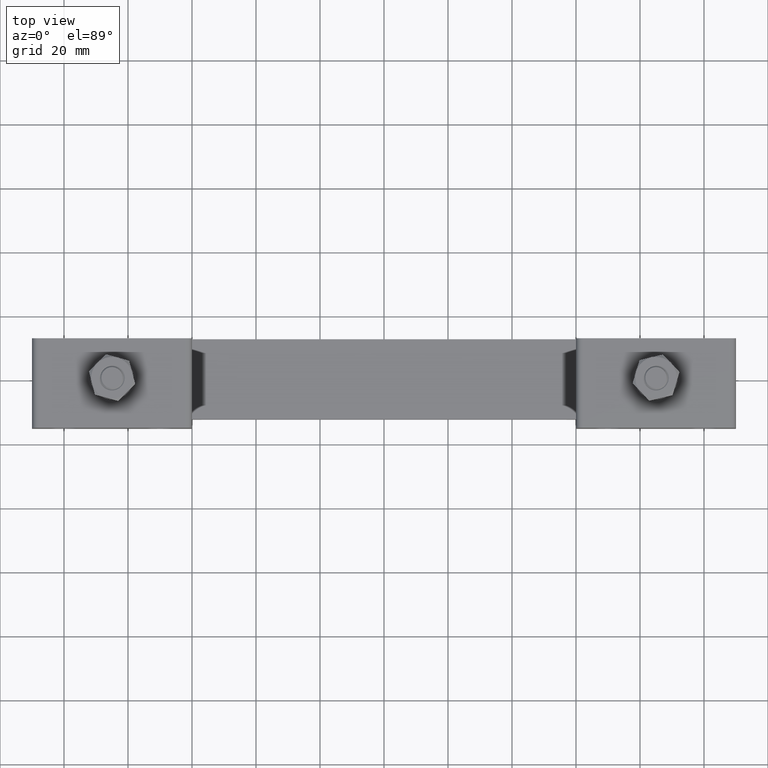
[diagram: clean part render]
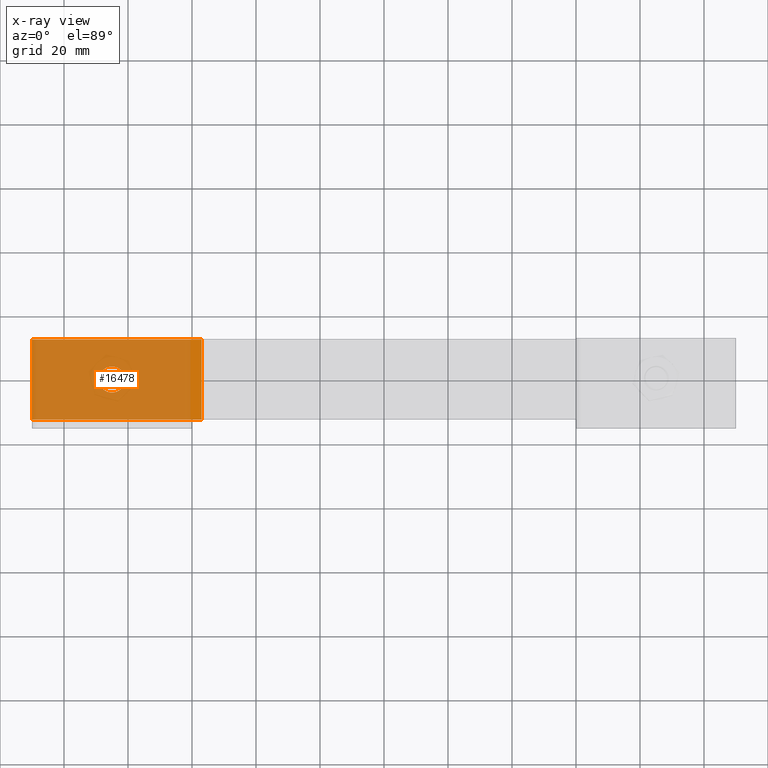
[diagram: x-ray — body ghosted, one internal face saturated and labeled with its STEP entity id]
A machine part, top view, then the same camera in x-ray: the body is ghosted and one INTERNAL B-rep face — a face not visible from any outside direction — is saturated and labeled: STEP entity #16478.
In plain terms, the highlighted planar face has unit normal (0, -0, 1).
Its self-contained STEP definition (entity closure, byte-faithful):
#322 = LINE ( 'NONE', #7096, #16093 ) ;
#450 = CARTESIAN_POINT ( 'NONE',  ( -110.0000000000000000, 12.50000000000020100, 4.000000000000000000 ) ) ;
#678 = EDGE_CURVE ( 'NONE', #1671, #6424, #3650, .T. ) ;
#823 = ORIENTED_EDGE ( 'NONE', *, *, #4439, .F. ) ;
#1263 = PLANE ( 'NONE',  #4542 ) ;
#1671 = VERTEX_POINT ( 'NONE', #10287 ) ;
#2054 = CARTESIAN_POINT ( 'NONE',  ( -85.00000000000000000, 3.447558851152469500E-015, 4.000000000000000000 ) ) ;
#2158 = LINE ( 'NONE', #8626, #14633 ) ;
#2222 = DIRECTION ( 'NONE',  ( 1.000000000000000000, 1.459206720071655800E-017, -6.938893903907250100E-016 ) ) ;
#2338 = EDGE_LOOP ( 'NONE', ( #17845, #16010, #823, #4496 ) ) ;
#2692 = ORIENTED_EDGE ( 'NONE', *, *, #9703, .T. ) ;
#2883 = DIRECTION ( 'NONE',  ( 6.938893903907250100E-016, -6.129044733418019900E-016, 1.000000000000000000 ) ) ;
#3083 = CARTESIAN_POINT ( 'NONE',  ( -110.0000000000000000, -12.50000000000024000, 4.000000000000000000 ) ) ;
#3441 = EDGE_CURVE ( 'NONE', #10076, #9677, #2158, .T. ) ;
#3650 = LINE ( 'NONE', #9076, #20148 ) ;
#4189 = AXIS2_PLACEMENT_3D ( 'NONE', #2054, #15076, #8266 ) ;
#4439 = EDGE_CURVE ( 'NONE', #9677, #1671, #322, .T. ) ;
#4496 = ORIENTED_EDGE ( 'NONE', *, *, #3441, .F. ) ;
#4542 = AXIS2_PLACEMENT_3D ( 'NONE', #3083, #2883, #4747 ) ;
#4747 = DIRECTION ( 'NONE',  ( 1.000000000000000000, 1.459206720071655800E-017, -6.938893903907250100E-016 ) ) ;
#4767 = DIRECTION ( 'NONE',  ( -1.000000000000000000, -1.459206720071655800E-017, 6.938893903907250100E-016 ) ) ;
#6134 = EDGE_LOOP ( 'NONE', ( #2692, #9687 ) ) ;
#6424 = VERTEX_POINT ( 'NONE', #17436 ) ;
#6939 = CARTESIAN_POINT ( 'NONE',  ( -110.0000000000000000, -12.50000000000024000, 4.000000000000000000 ) ) ;
#7096 = CARTESIAN_POINT ( 'NONE',  ( -57.00000000000000000, 12.50000000000022000, 3.999999999999945400 ) ) ;
#8266 = DIRECTION ( 'NONE',  ( 1.000000000000000000, 1.459206720071654900E-017, -6.346549302354161800E-016 ) ) ;
#8626 = CARTESIAN_POINT ( 'NONE',  ( -110.0000000000000000, -12.50000000000024000, 4.000000000000000000 ) ) ;
#8686 = VERTEX_POINT ( 'NONE', #17411 ) ;
#8960 = VERTEX_POINT ( 'NONE', #12596 ) ;
#8983 = FACE_BOUND ( 'NONE', #6134, .T. ) ;
#9076 = CARTESIAN_POINT ( 'NONE',  ( -110.0000000000000000, 12.50000000000020100, 4.000000000000000000 ) ) ;
#9677 = VERTEX_POINT ( 'NONE', #19946 ) ;
#9687 = ORIENTED_EDGE ( 'NONE', *, *, #12341, .T. ) ;
#9703 = EDGE_CURVE ( 'NONE', #8960, #8686, #14023, .T. ) ;
#10076 = VERTEX_POINT ( 'NONE', #6939 ) ;
#10287 = CARTESIAN_POINT ( 'NONE',  ( -57.00000000000000000, 12.50000000000022000, 3.999999999999945400 ) ) ;
#10507 = CARTESIAN_POINT ( 'NONE',  ( -85.00000000000000000, 3.447558851152469500E-015, 4.000000000000000000 ) ) ;
#12341 = EDGE_CURVE ( 'NONE', #8686, #8960, #16059, .T. ) ;
#12596 = CARTESIAN_POINT ( 'NONE',  ( -80.90000000000000600, 3.507386326675407500E-015, 3.999999999999997300 ) ) ;
#13986 = DIRECTION ( 'NONE',  ( -6.938893903907240200E-016, -6.129044733418019900E-016, 1.000000000000000000 ) ) ;
#14023 = CIRCLE ( 'NONE', #17136, 4.100000000000006800 ) ;
#14633 = VECTOR ( 'NONE', #2222, 1000.000000000000000 ) ;
#14980 = VECTOR ( 'NONE', #18483, 1000.000000000000000 ) ;
#15076 = DIRECTION ( 'NONE',  ( -6.938893903907240200E-016, -6.129044733418019900E-016, 1.000000000000000000 ) ) ;
#15405 = EDGE_CURVE ( 'NONE', #6424, #10076, #20997, .T. ) ;
#16010 = ORIENTED_EDGE ( 'NONE', *, *, #678, .F. ) ;
#16059 = CIRCLE ( 'NONE', #4189, 4.100000000000006800 ) ;
#16093 = VECTOR ( 'NONE', #18414, 1000.000000000000000 ) ;
#16478 = ADVANCED_FACE ( 'NONE', ( #8983, #17628 ), #1263, .F. ) ;
#17136 = AXIS2_PLACEMENT_3D ( 'NONE', #10507, #13986, #20378 ) ;
#17411 = CARTESIAN_POINT ( 'NONE',  ( -89.10000000000000900, 3.583384326609106100E-015, 3.999999999999997300 ) ) ;
#17436 = CARTESIAN_POINT ( 'NONE',  ( -110.0000000000000000, 12.50000000000020100, 4.000000000000000000 ) ) ;
#17628 = FACE_OUTER_BOUND ( 'NONE', #2338, .T. ) ;
#17845 = ORIENTED_EDGE ( 'NONE', *, *, #15405, .F. ) ;
#18414 = DIRECTION ( 'NONE',  ( 1.459206720071639500E-017, 1.000000000000000000, -6.129044733417934200E-016 ) ) ;
#18483 = DIRECTION ( 'NONE',  ( -1.459206720071639500E-017, -1.000000000000000000, 6.129044733417934200E-016 ) ) ;
#19946 = CARTESIAN_POINT ( 'NONE',  ( -57.00000000000000000, -12.50000000000022000, 4.000000000000000000 ) ) ;
#20148 = VECTOR ( 'NONE', #4767, 1000.000000000000000 ) ;
#20378 = DIRECTION ( 'NONE',  ( 1.000000000000000000, 1.459206720071654900E-017, -6.346549302354161800E-016 ) ) ;
#20997 = LINE ( 'NONE', #450, #14980 ) ;